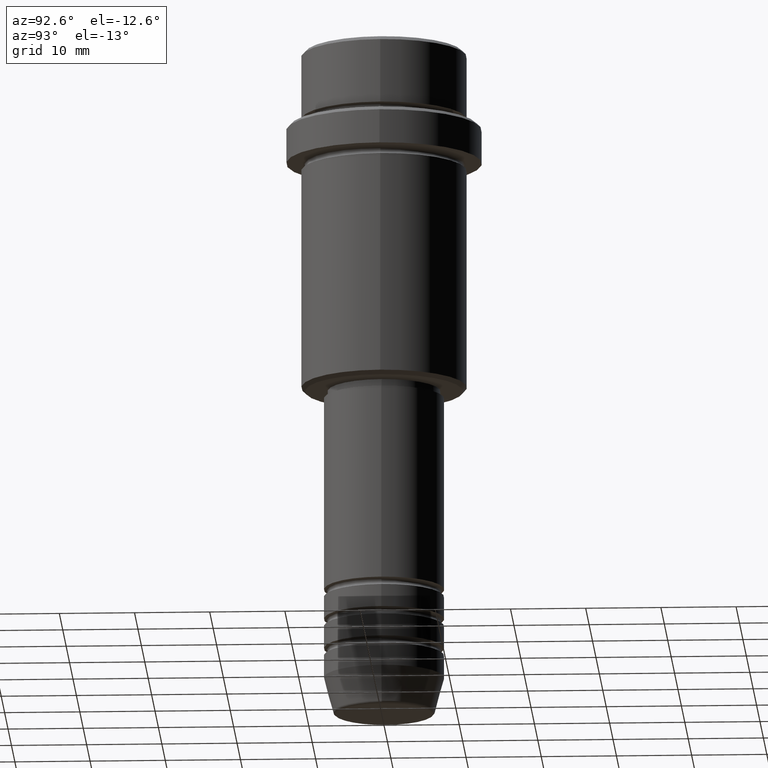
[diagram: clean part render]
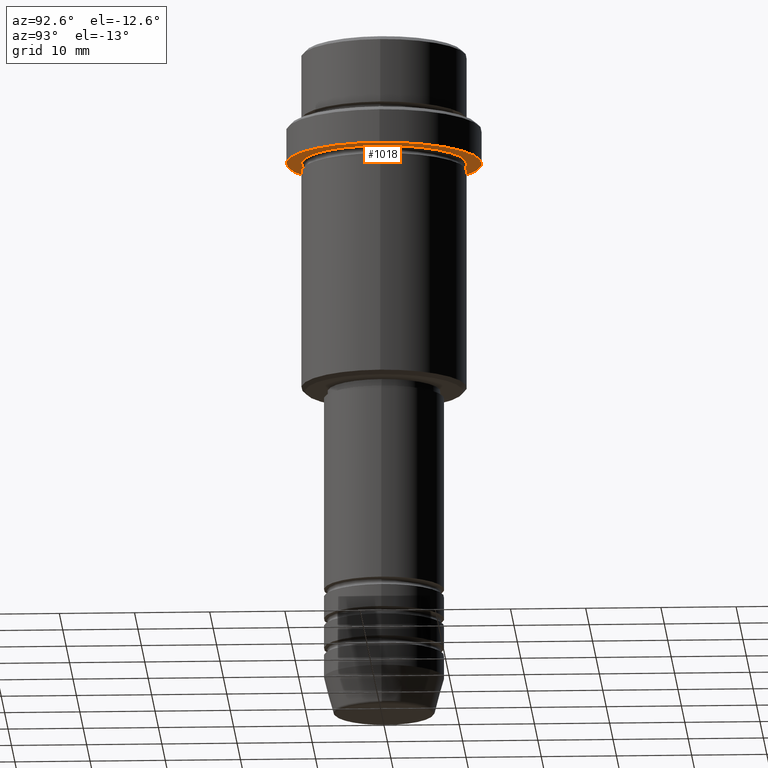
[diagram: same view with one face highlighted and labeled with its STEP entity id]
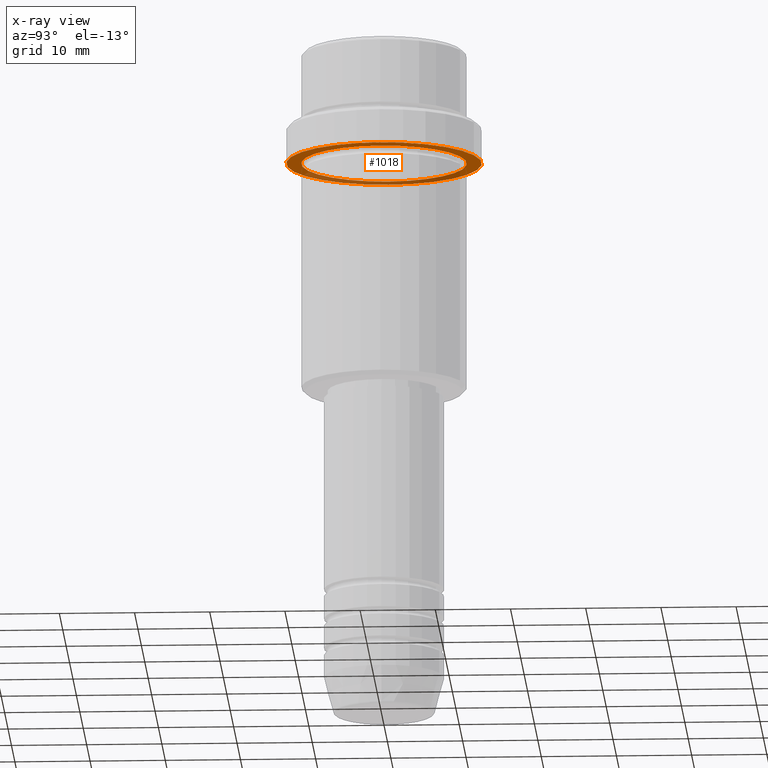
[diagram: x-ray of the same camera — body ghosted, the highlighted face saturated]
A machine part, auxiliary view. The second image highlights one B-rep face of the part: STEP entity #1018.
The next image is the same camera in x-ray: the body ghosted, the highlighted face saturated — about 33% of this face is hidden behind the body in this view.
In plain terms, the highlighted planar face has unit normal (0, 0, -1).
Its self-contained STEP definition (entity closure, byte-faithful):
#3 = CARTESIAN_POINT ( 'NONE',  ( 0.000000000000000000, 0.000000000000000000, -15.00000000000000355 ) ) ;
#17 = CARTESIAN_POINT ( 'NONE',  ( 10.99999999999996625, 1.347111479062084460E-15, -15.00000000000000355 ) ) ;
#60 = DIRECTION ( 'NONE',  ( 0.000000000000000000, 0.000000000000000000, -1.000000000000000000 ) ) ;
#121 = AXIS2_PLACEMENT_3D ( 'NONE', #1324, #1316, #330 ) ;
#135 = DIRECTION ( 'NONE',  ( -1.000000000000000000, 0.000000000000000000, 0.000000000000000000 ) ) ;
#153 = FACE_OUTER_BOUND ( 'NONE', #866, .T. ) ;
#187 = AXIS2_PLACEMENT_3D ( 'NONE', #196, #1089, #1343 ) ;
#196 = CARTESIAN_POINT ( 'NONE',  ( 0.000000000000000000, 0.000000000000000000, -15.00000000000000178 ) ) ;
#292 = VERTEX_POINT ( 'NONE', #743 ) ;
#330 = DIRECTION ( 'NONE',  ( 1.000000000000000000, 0.000000000000000000, 0.000000000000000000 ) ) ;
#360 = EDGE_CURVE ( 'NONE', #425, #868, #412, .T. ) ;
#376 = CARTESIAN_POINT ( 'NONE',  ( 0.000000000000000000, 13.00000000000000000, -15.00000000000000355 ) ) ;
#412 = CIRCLE ( 'NONE', #780, 10.99999999999996625 ) ;
#413 = CIRCLE ( 'NONE', #121, 13.00000000000000000 ) ;
#416 = CIRCLE ( 'NONE', #187, 13.00000000000000000 ) ;
#425 = VERTEX_POINT ( 'NONE', #1120 ) ;
#434 = AXIS2_PLACEMENT_3D ( 'NONE', #3, #509, #1098 ) ;
#483 = AXIS2_PLACEMENT_3D ( 'NONE', #376, #60, #753 ) ;
#509 = DIRECTION ( 'NONE',  ( -0.000000000000000000, -0.000000000000000000, 1.000000000000000000 ) ) ;
#583 = PLANE ( 'NONE',  #483 ) ;
#678 = CARTESIAN_POINT ( 'NONE',  ( 0.000000000000000000, 0.000000000000000000, -15.00000000000000355 ) ) ;
#723 = EDGE_CURVE ( 'NONE', #292, #915, #413, .T. ) ;
#743 = CARTESIAN_POINT ( 'NONE',  ( 13.00000000000000000, 0.000000000000000000, -15.00000000000000178 ) ) ;
#753 = DIRECTION ( 'NONE',  ( -1.000000000000000000, 0.000000000000000000, -0.000000000000000000 ) ) ;
#780 = AXIS2_PLACEMENT_3D ( 'NONE', #678, #1135, #135 ) ;
#811 = CIRCLE ( 'NONE', #434, 10.99999999999996625 ) ;
#832 = ORIENTED_EDGE ( 'NONE', *, *, #723, .F. ) ;
#866 = EDGE_LOOP ( 'NONE', ( #832, #1204 ) ) ;
#868 = VERTEX_POINT ( 'NONE', #17 ) ;
#915 = VERTEX_POINT ( 'NONE', #1263 ) ;
#1018 = ADVANCED_FACE ( 'NONE', ( #1154, #153 ), #583, .T. ) ;
#1089 = DIRECTION ( 'NONE',  ( -0.000000000000000000, -0.000000000000000000, 1.000000000000000000 ) ) ;
#1094 = EDGE_CURVE ( 'NONE', #868, #425, #811, .T. ) ;
#1098 = DIRECTION ( 'NONE',  ( -1.000000000000000000, 0.000000000000000000, 0.000000000000000000 ) ) ;
#1120 = CARTESIAN_POINT ( 'NONE',  ( -10.99999999999996625, 0.000000000000000000, -15.00000000000000355 ) ) ;
#1134 = EDGE_CURVE ( 'NONE', #915, #292, #416, .T. ) ;
#1135 = DIRECTION ( 'NONE',  ( -0.000000000000000000, -0.000000000000000000, 1.000000000000000000 ) ) ;
#1154 = FACE_BOUND ( 'NONE', #1180, .T. ) ;
#1180 = EDGE_LOOP ( 'NONE', ( #1266, #1376 ) ) ;
#1204 = ORIENTED_EDGE ( 'NONE', *, *, #1134, .F. ) ;
#1263 = CARTESIAN_POINT ( 'NONE',  ( -13.00000000000000000, 1.592040838891559095E-15, -15.00000000000000178 ) ) ;
#1266 = ORIENTED_EDGE ( 'NONE', *, *, #360, .T. ) ;
#1316 = DIRECTION ( 'NONE',  ( -0.000000000000000000, -0.000000000000000000, 1.000000000000000000 ) ) ;
#1324 = CARTESIAN_POINT ( 'NONE',  ( 0.000000000000000000, 0.000000000000000000, -15.00000000000000178 ) ) ;
#1343 = DIRECTION ( 'NONE',  ( 1.000000000000000000, 0.000000000000000000, 0.000000000000000000 ) ) ;
#1376 = ORIENTED_EDGE ( 'NONE', *, *, #1094, .T. ) ;